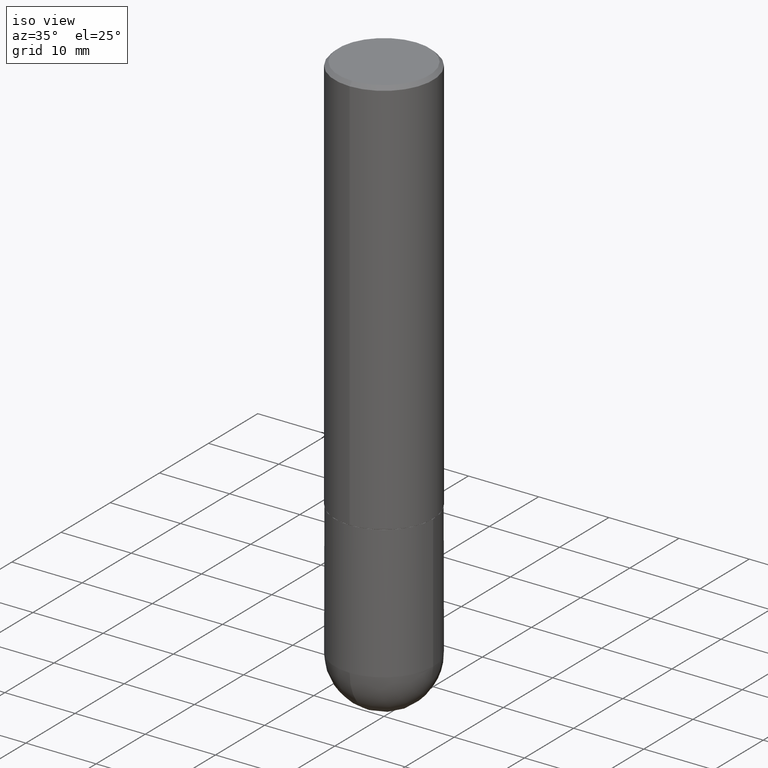
[diagram: clean part render]
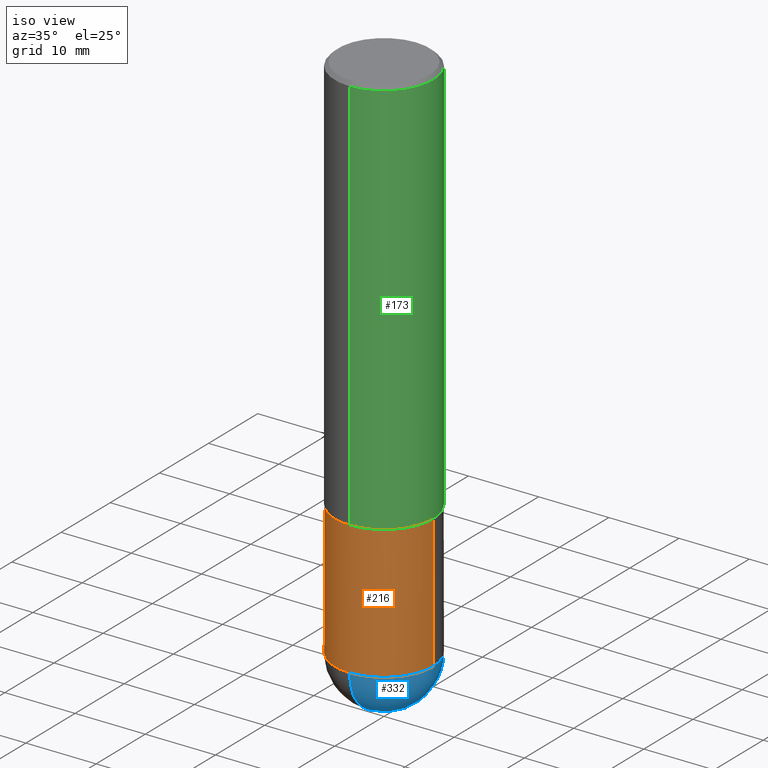
[diagram: same view with three faces highlighted in distinct colors, each labeled with its STEP entity id]
A machine part, iso view with three faces highlighted in distinct colors.
Their STEP definitions:

[orange] entity #216 — the highlighted cylindrical surface (partial cylindrical patch) has radius 7.0002 mm, axis along (-0, 0, 1).
#3 = EDGE_CURVE ( 'NONE', #207, #375, #410, .T. ) ;
#15 = VERTEX_POINT ( 'NONE', #307 ) ;
#16 = EDGE_CURVE ( 'NONE', #138, #375, #104, .T. ) ;
#17 = DIRECTION ( 'NONE',  ( -2.445468806185136877E-29, 3.491481338843145188E-15, 1.000000000000000000 ) ) ;
#22 = DIRECTION ( 'NONE',  ( -2.445468806185136877E-29, 3.491481338843145188E-15, 1.000000000000000000 ) ) ;
#27 = AXIS2_PLACEMENT_3D ( 'NONE', #253, #380, #274 ) ;
#31 = DIRECTION ( 'NONE',  ( 1.000000000000000000, -6.982962677686267499E-15, 4.876176775795935793E-29 ) ) ;
#32 = AXIS2_PLACEMENT_3D ( 'NONE', #121, #183, #283 ) ;
#34 = CARTESIAN_POINT ( 'NONE',  ( 0.000000000000000000, 0.000000000000000000, 0.000000000000000000 ) ) ;
#36 = EDGE_CURVE ( 'NONE', #15, #300, #316, .T. ) ;
#47 = CARTESIAN_POINT ( 'NONE',  ( -0.2756000000000000671, 1.958255779754836589E-15, -1.355658510874252287E-29 ) ) ;
#49 = VECTOR ( 'NONE', #17, 39.37007874015748143 ) ;
#53 = EDGE_CURVE ( 'NONE', #300, #207, #202, .T. ) ;
#63 = ORIENTED_EDGE ( 'NONE', *, *, #335, .F. ) ;
#77 = VECTOR ( 'NONE', #22, 39.37007874015748143 ) ;
#94 = DIRECTION ( 'NONE',  ( -2.445468806185136597E-29, 3.491481338843145583E-15, 1.000000000000000000 ) ) ;
#104 = CIRCLE ( 'NONE', #391, 0.2756000000000000116 ) ;
#116 = CARTESIAN_POINT ( 'NONE',  ( -1.958255779754765592E-15, -0.2756000000000108918, -2.992099999999998872 ) ) ;
#121 = CARTESIAN_POINT ( 'NONE',  ( 7.317087214986547114E-29, -1.044686131395257581E-14, -2.992100000000000204 ) ) ;
#138 = VERTEX_POINT ( 'NONE', #229 ) ;
#165 = FACE_OUTER_BOUND ( 'NONE', #249, .T. ) ;
#168 = DIRECTION ( 'NONE',  ( -2.445468806185136597E-29, 3.491481338843145583E-15, 1.000000000000000000 ) ) ;
#171 = ORIENTED_EDGE ( 'NONE', *, *, #3, .T. ) ;
#175 = LINE ( 'NONE', #47, #77 ) ;
#183 = DIRECTION ( 'NONE',  ( -2.445468806185136597E-29, 3.491481338843145583E-15, 1.000000000000000000 ) ) ;
#190 = ORIENTED_EDGE ( 'NONE', *, *, #36, .T. ) ;
#202 = CIRCLE ( 'NONE', #32, 0.2756000000000000671 ) ;
#207 = VERTEX_POINT ( 'NONE', #257 ) ;
#212 = CARTESIAN_POINT ( 'NONE',  ( 5.487876547960065873E-29, -7.835233272497903917E-15, -2.244100000000000428 ) ) ;
#216 = ADVANCED_FACE ( 'NONE', ( #165 ), #225, .T. ) ;
#225 = CYLINDRICAL_SURFACE ( 'NONE', #308, 0.2756000000000000671 ) ;
#229 = CARTESIAN_POINT ( 'NONE',  ( -0.2756000000000000116, -7.182791513470402485E-15, -2.244100000000000428 ) ) ;
#242 = ORIENTED_EDGE ( 'NONE', *, *, #16, .F. ) ;
#248 = ORIENTED_EDGE ( 'NONE', *, *, #53, .T. ) ;
#249 = EDGE_LOOP ( 'NONE', ( #63, #190, #248, #171, #242 ) ) ;
#253 = CARTESIAN_POINT ( 'NONE',  ( 7.317087214986547114E-29, -1.044686131395257581E-14, -2.992100000000000204 ) ) ;
#257 = CARTESIAN_POINT ( 'NONE',  ( 0.2756000000000000671, -1.106555180719557718E-14, -2.992100000000000204 ) ) ;
#274 = DIRECTION ( 'NONE',  ( 1.000000000000000000, -6.982962677686264344E-15, 0.000000000000000000 ) ) ;
#283 = DIRECTION ( 'NONE',  ( 1.000000000000000000, -6.982962677686264344E-15, 0.000000000000000000 ) ) ;
#287 = DIRECTION ( 'NONE',  ( 1.000000000000000000, -6.982962677686269866E-15, 0.000000000000000000 ) ) ;
#300 = VERTEX_POINT ( 'NONE', #116 ) ;
#307 = CARTESIAN_POINT ( 'NONE',  ( -0.2756000000000000671, -7.182791513470404062E-15, -2.992100000000000204 ) ) ;
#308 = AXIS2_PLACEMENT_3D ( 'NONE', #34, #168, #31 ) ;
#312 = CARTESIAN_POINT ( 'NONE',  ( 0.2756000000000000671, -1.924504513970335743E-15, 1.343874319409360268E-29 ) ) ;
#316 = CIRCLE ( 'NONE', #27, 0.2756000000000000671 ) ;
#335 = EDGE_CURVE ( 'NONE', #15, #138, #175, .T. ) ;
#375 = VERTEX_POINT ( 'NONE', #398 ) ;
#380 = DIRECTION ( 'NONE',  ( -2.445468806185136597E-29, 3.491481338843145583E-15, 1.000000000000000000 ) ) ;
#391 = AXIS2_PLACEMENT_3D ( 'NONE', #212, #94, #287 ) ;
#398 = CARTESIAN_POINT ( 'NONE',  ( 0.2756000000000000116, -9.759737786468238871E-15, -2.244100000000000428 ) ) ;
#410 = LINE ( 'NONE', #312, #49 ) ;

[blue] entity #332 — the highlighted spherical surface has radius 7.0002 mm.
#32 = AXIS2_PLACEMENT_3D ( 'NONE', #121, #183, #283 ) ;
#44 = ORIENTED_EDGE ( 'NONE', *, *, #53, .F. ) ;
#53 = EDGE_CURVE ( 'NONE', #300, #207, #202, .T. ) ;
#54 = DIRECTION ( 'NONE',  ( 6.982962677686265922E-15, 1.000000000000000000, 0.000000000000000000 ) ) ;
#59 = DIRECTION ( 'NONE',  ( 1.000000000000000000, -6.982962677686265922E-15, 4.883557194083112340E-29 ) ) ;
#68 = CIRCLE ( 'NONE', #259, 0.2756000000000003447 ) ;
#70 = EDGE_CURVE ( 'NONE', #314, #300, #185, .T. ) ;
#84 = AXIS2_PLACEMENT_3D ( 'NONE', #279, #214, #128 ) ;
#92 = SPHERICAL_SURFACE ( 'NONE', #294, 0.2756000000000003447 ) ;
#93 = EDGE_CURVE ( 'NONE', #207, #203, #136, .T. ) ;
#96 = EDGE_LOOP ( 'NONE', ( #245, #124, #362, #44 ) ) ;
#110 = AXIS2_PLACEMENT_3D ( 'NONE', #252, #221, #311 ) ;
#116 = CARTESIAN_POINT ( 'NONE',  ( -1.958255779754765592E-15, -0.2756000000000108918, -2.992099999999998872 ) ) ;
#121 = CARTESIAN_POINT ( 'NONE',  ( 7.317087214986547114E-29, -1.044686131395257581E-14, -2.992100000000000204 ) ) ;
#124 = ORIENTED_EDGE ( 'NONE', *, *, #399, .T. ) ;
#128 = DIRECTION ( 'NONE',  ( -7.105427357601001859E-15, -1.000000000000000000, 0.000000000000000000 ) ) ;
#136 = CIRCLE ( 'NONE', #110, 0.2756000000000000671 ) ;
#141 = CARTESIAN_POINT ( 'NONE',  ( 7.671722831522178326E-29, -1.186642030618554829E-14, -3.267700000000000049 ) ) ;
#183 = DIRECTION ( 'NONE',  ( -2.445468806185136597E-29, 3.491481338843145583E-15, 1.000000000000000000 ) ) ;
#185 = CIRCLE ( 'NONE', #84, 0.2756000000000003447 ) ;
#202 = CIRCLE ( 'NONE', #32, 0.2756000000000000671 ) ;
#203 = VERTEX_POINT ( 'NONE', #258 ) ;
#207 = VERTEX_POINT ( 'NONE', #257 ) ;
#214 = DIRECTION ( 'NONE',  ( -1.000000000000000000, 7.105427357601001070E-15, -4.926315508542082329E-29 ) ) ;
#221 = DIRECTION ( 'NONE',  ( -2.445468806185136597E-29, 3.491481338843145583E-15, 1.000000000000000000 ) ) ;
#245 = ORIENTED_EDGE ( 'NONE', *, *, #70, .F. ) ;
#246 = CARTESIAN_POINT ( 'NONE',  ( 6.985967437072660867E-29, -1.092104368209262610E-14, -2.992100000000000204 ) ) ;
#252 = CARTESIAN_POINT ( 'NONE',  ( 7.317087214986547114E-29, -1.044686131395257581E-14, -2.992100000000000204 ) ) ;
#257 = CARTESIAN_POINT ( 'NONE',  ( 0.2756000000000000671, -1.106555180719557718E-14, -2.992100000000000204 ) ) ;
#258 = CARTESIAN_POINT ( 'NONE',  ( 1.924504513970407924E-15, 0.2755999999999895200, -2.992100000000001092 ) ) ;
#259 = AXIS2_PLACEMENT_3D ( 'NONE', #306, #59, #54 ) ;
#266 = FACE_OUTER_BOUND ( 'NONE', #96, .T. ) ;
#279 = CARTESIAN_POINT ( 'NONE',  ( 6.985967437072660867E-29, -1.092104368209262610E-14, -2.992100000000000204 ) ) ;
#283 = DIRECTION ( 'NONE',  ( 1.000000000000000000, -6.982962677686264344E-15, 0.000000000000000000 ) ) ;
#294 = AXIS2_PLACEMENT_3D ( 'NONE', #246, #334, #345 ) ;
#300 = VERTEX_POINT ( 'NONE', #116 ) ;
#306 = CARTESIAN_POINT ( 'NONE',  ( 6.985967437072660867E-29, -1.092104368209262610E-14, -2.992100000000000204 ) ) ;
#311 = DIRECTION ( 'NONE',  ( 1.000000000000000000, -6.982962677686264344E-15, 0.000000000000000000 ) ) ;
#314 = VERTEX_POINT ( 'NONE', #141 ) ;
#332 = ADVANCED_FACE ( 'NONE', ( #266 ), #92, .T. ) ;
#334 = DIRECTION ( 'NONE',  ( -1.000000000000000000, 6.982962677686265922E-15, -4.883557194083112340E-29 ) ) ;
#345 = DIRECTION ( 'NONE',  ( 6.982962677686265922E-15, 1.000000000000000000, -3.964946289788475374E-15 ) ) ;
#362 = ORIENTED_EDGE ( 'NONE', *, *, #93, .F. ) ;
#399 = EDGE_CURVE ( 'NONE', #314, #203, #68, .T. ) ;

[green] entity #173 — the highlighted cylindrical surface (partial cylindrical patch) has radius 7.0002 mm, axis along (-0, 0, 1).
#1 = DIRECTION ( 'NONE',  ( -2.447914526065286047E-29, 3.487978928773040976E-15, 1.000000000000000000 ) ) ;
#7 = CIRCLE ( 'NONE', #243, 0.2756000000000000671 ) ;
#10 = VERTEX_POINT ( 'NONE', #24 ) ;
#24 = CARTESIAN_POINT ( 'NONE',  ( -1.924504513970282495E-15, -0.2756000000000081718, -2.243099999999999206 ) ) ;
#40 = DIRECTION ( 'NONE',  ( -6.982962677686265922E-15, -1.000000000000000000, 3.487978928773041370E-15 ) ) ;
#50 = VECTOR ( 'NONE', #163, 39.37007874015748143 ) ;
#55 = VERTEX_POINT ( 'NONE', #400 ) ;
#75 = FACE_OUTER_BOUND ( 'NONE', #107, .T. ) ;
#107 = EDGE_LOOP ( 'NONE', ( #347, #109, #147, #305 ) ) ;
#108 = DIRECTION ( 'NONE',  ( -6.982962677686265922E-15, -1.000000000000000000, 3.964946289788475374E-15 ) ) ;
#109 = ORIENTED_EDGE ( 'NONE', *, *, #144, .T. ) ;
#137 = CIRCLE ( 'NONE', #317, 0.2756000000000003447 ) ;
#143 = LINE ( 'NONE', #148, #408 ) ;
#144 = EDGE_CURVE ( 'NONE', #180, #368, #358, .T. ) ;
#147 = ORIENTED_EDGE ( 'NONE', *, *, #409, .F. ) ;
#148 = CARTESIAN_POINT ( 'NONE',  ( -1.924504513970336137E-15, -0.2756000000000001782, 9.612869927698508130E-16 ) ) ;
#163 = DIRECTION ( 'NONE',  ( -2.447914526065285767E-29, 3.487978928773041370E-15, 1.000000000000000000 ) ) ;
#173 = ADVANCED_FACE ( 'NONE', ( #75 ), #291, .T. ) ;
#180 = VERTEX_POINT ( 'NONE', #293 ) ;
#193 = AXIS2_PLACEMENT_3D ( 'NONE', #328, #1, #40 ) ;
#200 = CARTESIAN_POINT ( 'NONE',  ( 1.958255779754837378E-15, 0.2756000000000001782, -9.612869927698508130E-16 ) ) ;
#236 = DIRECTION ( 'NONE',  ( -2.447914526065286047E-29, 3.487978928773040976E-15, 1.000000000000000000 ) ) ;
#243 = AXIS2_PLACEMENT_3D ( 'NONE', #403, #236, #363 ) ;
#272 = CARTESIAN_POINT ( 'NONE',  ( 1.924504513970335743E-15, 0.2756000000000000116, -0.02000000000000105513 ) ) ;
#290 = EDGE_CURVE ( 'NONE', #10, #180, #137, .T. ) ;
#291 = CYLINDRICAL_SURFACE ( 'NONE', #193, 0.2756000000000001782 ) ;
#293 = CARTESIAN_POINT ( 'NONE',  ( 1.958255779754865383E-15, 0.2755999999999925176, -2.243100000000001426 ) ) ;
#305 = ORIENTED_EDGE ( 'NONE', *, *, #371, .F. ) ;
#317 = AXIS2_PLACEMENT_3D ( 'NONE', #331, #389, #108 ) ;
#328 = CARTESIAN_POINT ( 'NONE',  ( 0.000000000000000000, 0.000000000000000000, 0.000000000000000000 ) ) ;
#331 = CARTESIAN_POINT ( 'NONE',  ( 5.490917073417043323E-29, -7.823885535130809142E-15, -2.243100000000000094 ) ) ;
#342 = DIRECTION ( 'NONE',  ( -2.447914526065285767E-29, 3.487978928773041370E-15, 1.000000000000000000 ) ) ;
#347 = ORIENTED_EDGE ( 'NONE', *, *, #290, .T. ) ;
#358 = LINE ( 'NONE', #200, #50 ) ;
#363 = DIRECTION ( 'NONE',  ( -6.982962677686265922E-15, -1.000000000000000000, 3.484816075009405599E-15 ) ) ;
#368 = VERTEX_POINT ( 'NONE', #272 ) ;
#371 = EDGE_CURVE ( 'NONE', #10, #55, #143, .T. ) ;
#389 = DIRECTION ( 'NONE',  ( -2.447914526065286047E-29, 3.487978928773040976E-15, 1.000000000000000000 ) ) ;
#400 = CARTESIAN_POINT ( 'NONE',  ( -1.890753248185833713E-15, -0.2756000000000001227, -0.01999999999999913305 ) ) ;
#403 = CARTESIAN_POINT ( 'NONE',  ( 4.895829052130595321E-31, -6.975957857546113555E-17, -0.02000000000000009409 ) ) ;
#408 = VECTOR ( 'NONE', #342, 39.37007874015748143 ) ;
#409 = EDGE_CURVE ( 'NONE', #55, #368, #7, .T. ) ;